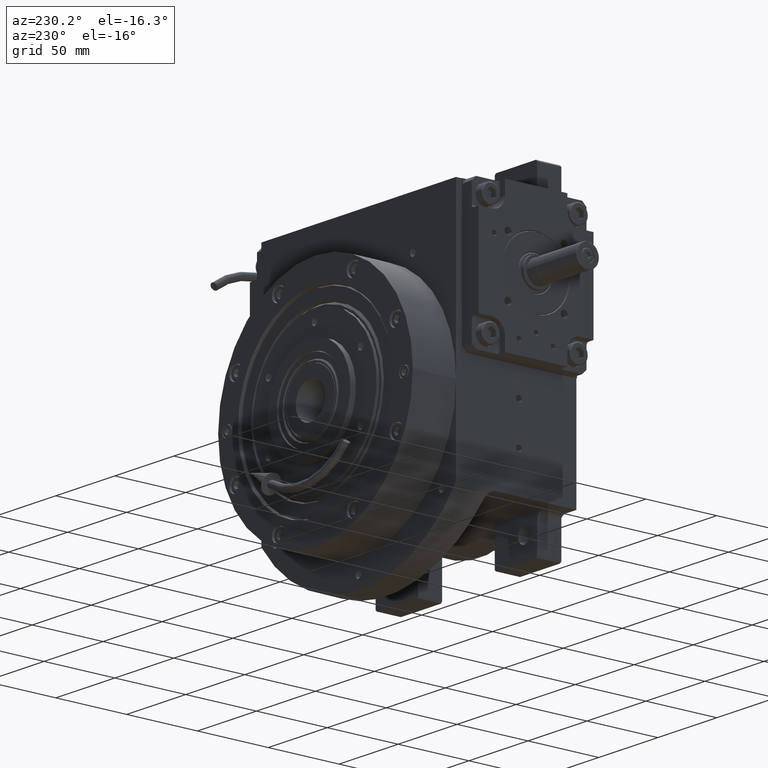
[diagram: clean part render]
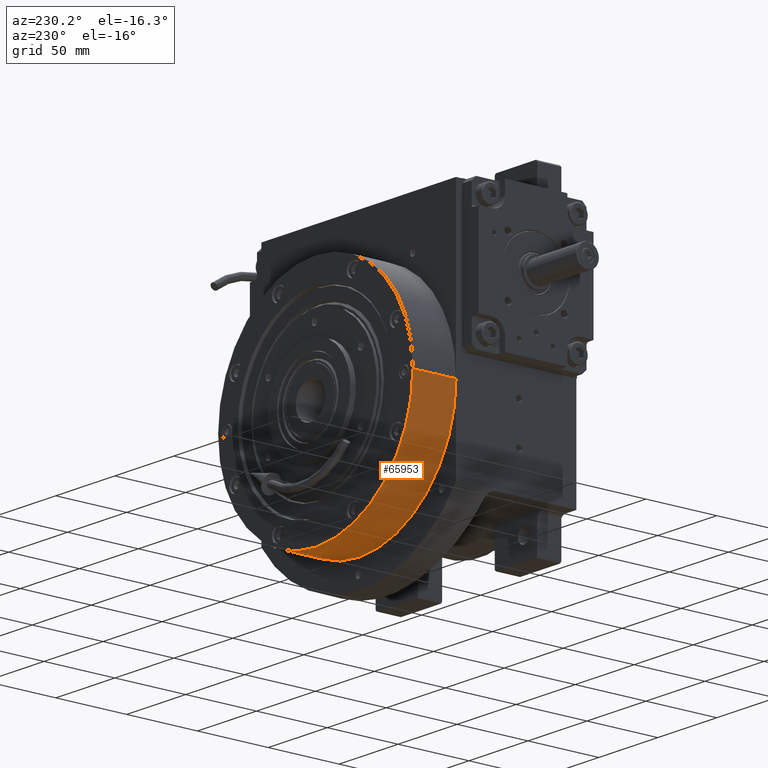
[diagram: same view with one face highlighted and labeled with its STEP entity id]
A machine part, auxiliary view. The second image highlights one B-rep face of the part: STEP entity #65953.
In plain terms, the highlighted cylindrical surface (partial cylindrical patch) has radius 82.5 mm, axis along (0, 1, 0).
Its self-contained STEP definition (entity closure, byte-faithful):
#115 = FACE_OUTER_BOUND ( 'NONE', #36105, .T. ) ;
#291 = CARTESIAN_POINT ( 'NONE',  ( 82.49999999999998579, -1.010300241903009221E-14, 0.000000000000000000 ) ) ;
#7129 = CIRCLE ( 'NONE', #29727, 82.50000000000000000 ) ;
#7489 = AXIS2_PLACEMENT_3D ( 'NONE', #48087, #27145, #60183 ) ;
#8473 = CARTESIAN_POINT ( 'NONE',  ( -82.50000000000001421, 2.020633851199993078E-14, 0.000000000000000000 ) ) ;
#10012 = CARTESIAN_POINT ( 'NONE',  ( -82.50000000000001421, 2.020633851199993078E-14, 30.49999999999998579 ) ) ;
#10288 = VERTEX_POINT ( 'NONE', #10012 ) ;
#10452 = VECTOR ( 'NONE', #63829, 1000.000000000000000 ) ;
#10670 = CARTESIAN_POINT ( 'NONE',  ( 82.49999999999998579, -1.010322486831990379E-14, 0.000000000000000000 ) ) ;
#10763 = DIRECTION ( 'NONE',  ( 0.000000000000000000, 0.000000000000000000, 1.000000000000000000 ) ) ;
#11170 = CARTESIAN_POINT ( 'NONE',  ( 0.000000000000000000, 0.000000000000000000, 30.49999999999998579 ) ) ;
#11865 = DIRECTION ( 'NONE',  ( 1.000000000000000000, 0.000000000000000000, 0.000000000000000000 ) ) ;
#22481 = DIRECTION ( 'NONE',  ( 0.000000000000000000, 0.000000000000000000, 1.000000000000000000 ) ) ;
#22852 = ORIENTED_EDGE ( 'NONE', *, *, #27281, .F. ) ;
#27145 = DIRECTION ( 'NONE',  ( 0.000000000000000000, 0.000000000000000000, 1.000000000000000000 ) ) ;
#27281 = EDGE_CURVE ( 'NONE', #47142, #10288, #7129, .T. ) ;
#29727 = AXIS2_PLACEMENT_3D ( 'NONE', #11170, #22481, #11865 ) ;
#30301 = VERTEX_POINT ( 'NONE', #291 ) ;
#31520 = LINE ( 'NONE', #65212, #10452 ) ;
#32022 = CARTESIAN_POINT ( 'NONE',  ( 0.000000000000000000, 0.000000000000000000, 0.000000000000000000 ) ) ;
#35080 = EDGE_CURVE ( 'NONE', #30301, #67993, #38076, .T. ) ;
#35945 = DIRECTION ( 'NONE',  ( 0.000000000000000000, 0.000000000000000000, 1.000000000000000000 ) ) ;
#36105 = EDGE_LOOP ( 'NONE', ( #53558, #22852, #57458, #67126 ) ) ;
#36482 = EDGE_CURVE ( 'NONE', #30301, #47142, #37621, .T. ) ;
#36996 = DIRECTION ( 'NONE',  ( 1.000000000000000000, 0.000000000000000000, 0.000000000000000000 ) ) ;
#37621 = LINE ( 'NONE', #10670, #60778 ) ;
#38076 = CIRCLE ( 'NONE', #7489, 82.50000000000000000 ) ;
#42329 = EDGE_CURVE ( 'NONE', #67993, #10288, #31520, .T. ) ;
#47142 = VERTEX_POINT ( 'NONE', #67791 ) ;
#48087 = CARTESIAN_POINT ( 'NONE',  ( 0.000000000000000000, 0.000000000000000000, 0.000000000000000000 ) ) ;
#53558 = ORIENTED_EDGE ( 'NONE', *, *, #42329, .T. ) ;
#57458 = ORIENTED_EDGE ( 'NONE', *, *, #36482, .F. ) ;
#59372 = CYLINDRICAL_SURFACE ( 'NONE', #63499, 82.50000000000000000 ) ;
#60183 = DIRECTION ( 'NONE',  ( 1.000000000000000000, 0.000000000000000000, 0.000000000000000000 ) ) ;
#60778 = VECTOR ( 'NONE', #35945, 1000.000000000000000 ) ;
#63499 = AXIS2_PLACEMENT_3D ( 'NONE', #32022, #10763, #36996 ) ;
#63829 = DIRECTION ( 'NONE',  ( 0.000000000000000000, 0.000000000000000000, 1.000000000000000000 ) ) ;
#65212 = CARTESIAN_POINT ( 'NONE',  ( -82.50000000000001421, 1.010322486831990379E-14, 0.000000000000000000 ) ) ;
#65953 = ADVANCED_FACE ( 'NONE', ( #115 ), #59372, .T. ) ;
#67126 = ORIENTED_EDGE ( 'NONE', *, *, #35080, .T. ) ;
#67791 = CARTESIAN_POINT ( 'NONE',  ( 82.49999999999998579, -1.010300241903009221E-14, 30.49999999999998579 ) ) ;
#67993 = VERTEX_POINT ( 'NONE', #8473 ) ;